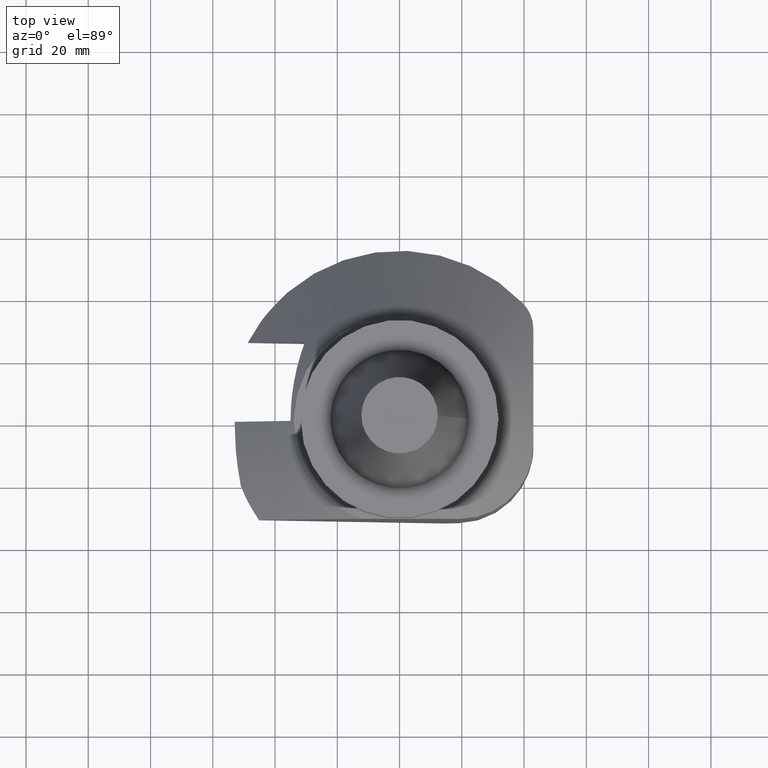
[diagram: clean part render]
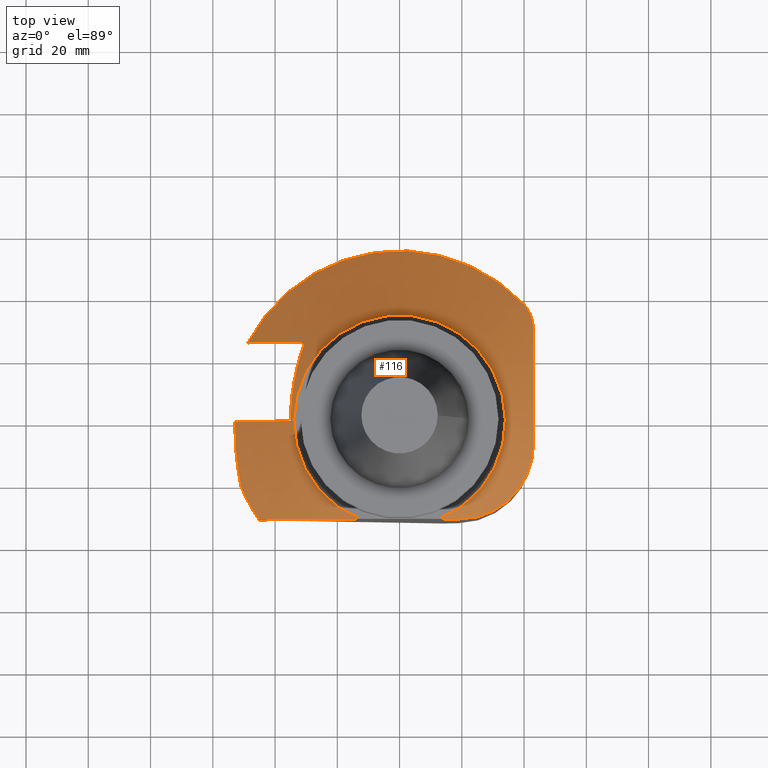
[diagram: same view with one face highlighted and labeled with its STEP entity id]
A machine part, top view. The second image highlights one B-rep face of the part: STEP entity #116.
In plain terms, the highlighted conical surface has half-angle 45 deg.
Its self-contained STEP definition (entity closure, byte-faithful):
#116=ADVANCED_FACE('Unnamed[1]',(#336),#337,.T.);
#124=EDGE_CURVE('Unnamed[1]',#351,#352,#353,.T.);
#130=EDGE_CURVE('Unnamed[1]',#362,#363,#364,.T.);
#156=EDGE_CURVE('Unnamed[1]',#402,#403,#404,.T.);
#162=EDGE_CURVE('Unnamed[1]',#412,#413,#414,.T.);
#179=EDGE_CURVE('Unnamed[1]',#351,#436,#437,.T.);
#181=EDGE_CURVE('Unnamed[1]',#403,#363,#439,.T.);
#189=EDGE_CURVE('Unnamed[1]',#344,#352,#450,.T.);
#205=EDGE_CURVE('Unnamed[1]',#433,#344,#471,.T.);
#219=EDGE_CURVE('Unnamed[1]',#362,#444,#490,.T.);
#248=EDGE_CURVE('Unnamed[1]',#436,#402,#527,.T.);
#253=EDGE_CURVE('Unnamed[1]',#413,#433,#533,.T.);
#257=EDGE_CURVE('Unnamed[1]',#444,#412,#537,.T.);
#336=FACE_OUTER_BOUND('',#629,.T.);
#337=CONICAL_SURFACE('',#630,44.4999999999994,0.785398163397441);
#344=VERTEX_POINT('',#640);
#351=VERTEX_POINT('',#651);
#352=VERTEX_POINT('',#652);
#353=CIRCLE('',#653,55.0000000000001);
#362=VERTEX_POINT('',#666);
#363=VERTEX_POINT('',#667);
#364=CIRCLE('',#668,55.0000000000001);
#402=VERTEX_POINT('',#716);
#403=VERTEX_POINT('',#717);
#404=LINE('',#718,#719);
#412=VERTEX_POINT('',#732);
#413=VERTEX_POINT('',#733);
#414=(B_SPLINE_CURVE(2,(#735,#736,#737),.UNSPECIFIED.,.F.,.F.)B_SPLINE_CURVE_WITH_KNOTS((3,3),(0.0,38.6326090331154),.UNSPECIFIED.)RATIONAL_B_SPLINE_CURVE((1.0,1.07311621530074,1.0))BOUNDED_CURVE()REPRESENTATION_ITEM('')GEOMETRIC_REPRESENTATION_ITEM()CURVE());
#433=VERTEX_POINT('',#769);
#436=VERTEX_POINT('',#774);
#437=(B_SPLINE_CURVE(2,(#776,#777,#778),.UNSPECIFIED.,.F.,.F.)B_SPLINE_CURVE_WITH_KNOTS((3,3),(0.0,33.5817904275308),.UNSPECIFIED.)RATIONAL_B_SPLINE_CURVE((1.0,1.04629863878547,1.0))BOUNDED_CURVE()REPRESENTATION_ITEM('')GEOMETRIC_REPRESENTATION_ITEM()CURVE());
#439=B_SPLINE_CURVE_WITH_KNOTS('',2,(#787,#788,#789,#790,#791),.UNSPECIFIED.,.F.,.F.,(3,2,3),(0.0,20.8328998074148,41.6657996148295),.UNSPECIFIED.);
#444=VERTEX_POINT('',#798);
#450=B_SPLINE_CURVE_WITH_KNOTS('',3,(#808,#809,#810,#811,#812,#813,#814,#815,#816,#817,#818,#819,#820,#821,#822,#823,#824,#825),.UNSPECIFIED.,.F.,.F.,(4,2,2,2,2,2,2,2,4),(27.7605098795428,29.3034102222533,30.8463105649638,32.3892109076743,33.6780644914804,34.9669180752865,36.2557716590926,37.5446252428987,38.8334788267049),.UNSPECIFIED.);
#471=(B_SPLINE_CURVE(2,(#855,#856,#857),.UNSPECIFIED.,.F.,.F.)B_SPLINE_CURVE_WITH_KNOTS((3,3),(0.0,72.6636084983805),.UNSPECIFIED.)RATIONAL_B_SPLINE_CURVE((1.0,1.27906976744211,1.0))BOUNDED_CURVE()REPRESENTATION_ITEM('')GEOMETRIC_REPRESENTATION_ITEM()CURVE());
#490=(B_SPLINE_CURVE(2,(#890,#891,#892),.UNSPECIFIED.,.F.,.F.)B_SPLINE_CURVE_WITH_KNOTS((3,3),(0.0,38.6326090331154),.UNSPECIFIED.)RATIONAL_B_SPLINE_CURVE((1.0,1.07311621530074,1.0))BOUNDED_CURVE()REPRESENTATION_ITEM('')GEOMETRIC_REPRESENTATION_ITEM()CURVE());
#527=B_SPLINE_CURVE_WITH_KNOTS('',2,(#951,#952,#953),.UNSPECIFIED.,.F.,.F.,(3,3),(0.0,119.908544665202),.UNSPECIFIED.);
#533=B_SPLINE_CURVE_WITH_KNOTS('',3,(#961,#962,#963,#964,#965,#966,#967,#968,#969,#970,#971,#972,#973,#974,#975,#976,#977,#978,#979,#980,#981,#982,#983,#984,#985,#986),.UNSPECIFIED.,.F.,.F.,(4,2,2,2,2,2,2,2,2,2,2,2,4),(7.0755595060852,10.6133392591278,14.1511190121704,17.3437649584469,20.5364109047233,23.7290568509998,26.9217027972763,29.9863579226118,33.0510130479474,36.1156681732829,39.1803232986185,42.3222428172419,45.4641623358653),.UNSPECIFIED.);
#537=CIRCLE('',#993,33.9999999999988);
#629=EDGE_LOOP('',(#1099,#1100,#1101,#1102,#1103,#1104,#1105,#1106,#1107,#1108,#1109,#1110));
#630=AXIS2_PLACEMENT_3D('',#1111,#1112,#1113);
#640=CARTESIAN_POINT('',(43.0000000000008,29.7993288515026,-53.3163454381138));
#651=CARTESIAN_POINT('',(-48.7836038029173,25.4,-56.0));
#652=CARTESIAN_POINT('',(39.6511627906985,38.1154206240149,-56.0000000000004));
#653=AXIS2_PLACEMENT_3D('',#1117,#1118,#1119);
#666=CARTESIAN_POINT('',(-45.0860288781339,-31.5000000000002,-55.9999999999993));
#667=CARTESIAN_POINT('',(-50.9999999999992,-20.5912602819761,-56.0));
#668=AXIS2_PLACEMENT_3D('',#1124,#1125,#1126);
#716=CARTESIAN_POINT('',(-35.0394877578616,2.88745666838479E-014,-36.0394877578613));
#717=CARTESIAN_POINT('',(-52.9999999999995,6.42860250629186E-014,-53.9999999999994));
#718=CARTESIAN_POINT('',(-44.4999999999994,1.97470934346012E-014,-45.4999999999992));
#719=VECTOR('',#1183,1.0);
#732=CARTESIAN_POINT('',(12.796483892066,-31.5000000000002,-34.9999999999984));
#733=CARTESIAN_POINT('',(19.0000000000007,-31.5,-37.7865464538328));
#735=CARTESIAN_POINT('',(12.796483892066,-31.5000000000002,-34.9999999999984));
#736=CARTESIAN_POINT('',(25.1318156845002,-31.5000000000002,-39.6426139583861));
#737=CARTESIAN_POINT('',(45.0860288781487,-31.5000000000003,-56.0000000000115));
#769=CARTESIAN_POINT('',(43.0000000000007,-7.50000000000009,-44.6491695224553));
#774=CARTESIAN_POINT('',(-30.4363953520996,25.4000000000001,-40.6425801636232));
#776=CARTESIAN_POINT('',(-48.783840437169,25.4,-56.0002098886828));
#777=CARTESIAN_POINT('',(-32.603885582621,25.4000000000001,-41.6489858205854));
#778=CARTESIAN_POINT('',(-22.6017698421922,25.4000000000001,-34.9999999999913));
#787=CARTESIAN_POINT('',(-50.9997901113164,20.5923407217548,-56.0002098886828));
#788=CARTESIAN_POINT('',(-52.9999999999996,10.2961703608775,-53.9999999999996));
#789=CARTESIAN_POINT('',(-52.9999999999997,1.15463194561016E-014,-53.9999999999996));
#790=CARTESIAN_POINT('',(-52.9999999999997,-10.2961703608774,-53.9999999999996));
#791=CARTESIAN_POINT('',(-50.9997901113164,-20.5923407217548,-56.0002098886828));
#798=CARTESIAN_POINT('',(-12.796483892066,-31.5000000000002,-34.9999999999984));
#808=CARTESIAN_POINT('',(42.9857557853325,29.2148134501773,-52.9738446275043));
#809=CARTESIAN_POINT('',(43.0086331019977,29.6839232987416,-53.2564551514206));
#810=CARTESIAN_POINT('',(43.0044193920009,30.171432085167,-53.5311065562401));
#811=CARTESIAN_POINT('',(42.9330994531678,31.1578877851202,-54.0460814201967));
#812=CARTESIAN_POINT('',(42.865901481108,31.6571703282046,-54.2865629527265));
#813=CARTESIAN_POINT('',(42.6696571086593,32.6401554698778,-54.7203428433219));
#814=CARTESIAN_POINT('',(42.54055220188,33.1238529322254,-54.9136263698599));
#815=CARTESIAN_POINT('',(42.2587486622815,33.9713573270026,-55.21908374886));
#816=CARTESIAN_POINT('',(42.103402104987,34.3720408572199,-55.3502697574906));
#817=CARTESIAN_POINT('',(41.7370472659778,35.1762284600335,-55.5817398436669));
#818=CARTESIAN_POINT('',(41.5259916391165,35.5797173286451,-55.6820018060097));
#819=CARTESIAN_POINT('',(41.0552206566601,36.3645347479104,-55.8425709212611));
#820=CARTESIAN_POINT('',(40.7952706044606,36.7461972633082,-55.9029357961453));
#821=CARTESIAN_POINT('',(40.2421062007657,37.4667782265759,-55.9816498859721));
#822=CARTESIAN_POINT('',(39.9488912541502,37.8056961193793,-56.0000000000004));
#823=CARTESIAN_POINT('',(39.3534343272467,38.4251451286505,-56.0000000000004));
#824=CARTESIAN_POINT('',(39.0263570396004,38.731512213839,-55.9816498859725));
#825=CARTESIAN_POINT('',(38.677267152629,39.0221033292384,-55.9422928410591));
#855=CARTESIAN_POINT('',(43.0000000000007,-34.2928563989823,-56.0000000000115));
#856=CARTESIAN_POINT('',(43.0000000000007,-1.01389603783403E-013,-34.6181818181755));
#857=CARTESIAN_POINT('',(43.0000000000008,34.2928563989821,-56.0000000000116));
#890=CARTESIAN_POINT('',(-45.0860288781488,-31.5000000000002,-56.0000000000116));
#891=CARTESIAN_POINT('',(-25.1318156845002,-31.5000000000002,-39.6426139583861));
#892=CARTESIAN_POINT('',(-12.796483892066,-31.5000000000002,-34.9999999999984));
#951=CARTESIAN_POINT('',(-15.0787656270401,52.8928531558278,-56.0002098886828));
#952=CARTESIAN_POINT('',(-55.0002098886834,-3.88365624857746E-014,-16.0787656270395));
#953=CARTESIAN_POINT('',(-15.07876562704,-52.8928531558279,-56.0002098886828));
#961=CARTESIAN_POINT('',(18.8237335880874,-31.4993527027716,-37.6952608232804));
#962=CARTESIAN_POINT('',(19.9573823335325,-31.5076786451015,-38.2839408774414));
#963=CARTESIAN_POINT('',(21.1037809390737,-31.4345922910759,-38.8482599998965));
#964=CARTESIAN_POINT('',(23.3552101515658,-31.1288541157086,-39.9032006708335));
#965=CARTESIAN_POINT('',(24.4602018527806,-30.8961199529368,-40.3938813843904));
#966=CARTESIAN_POINT('',(26.4595620086925,-30.3325621458993,-41.2413143827097));
#967=CARTESIAN_POINT('',(27.4411962114438,-29.991827438261,-41.6390876792474));
#968=CARTESIAN_POINT('',(29.4018249951322,-29.1549793750135,-42.3942824581303));
#969=CARTESIAN_POINT('',(30.3807717755471,-28.6587839759329,-42.751737122154));
#970=CARTESIAN_POINT('',(32.2731604417765,-27.5259659471113,-43.4043164105877));
#971=CARTESIAN_POINT('',(33.1873765536998,-26.8887955319533,-43.6997541852665));
#972=CARTESIAN_POINT('',(34.8994628005112,-25.5114998903288,-44.2165344542345));
#973=CARTESIAN_POINT('',(35.6972983792402,-24.7713398425838,-44.4378986273903));
#974=CARTESIAN_POINT('',(37.1107309192397,-23.2801784665291,-44.7971621564323));
#975=CARTESIAN_POINT('',(37.7887442875914,-22.4713438100469,-44.9523367632946));
#976=CARTESIAN_POINT('',(39.0532403375717,-20.7297240842493,-45.201068550048));
#977=CARTESIAN_POINT('',(39.6396859063197,-19.7969142007381,-45.2946406522146));
#978=CARTESIAN_POINT('',(40.6782934786398,-17.8567526277084,-45.4114833647177));
#979=CARTESIAN_POINT('',(41.1309507025375,-16.8484441797189,-45.4348163328819));
#980=CARTESIAN_POINT('',(41.8828465639114,-14.817630812767,-45.4135423577638));
#981=CARTESIAN_POINT('',(42.1820996695175,-13.7951313129176,-45.3689294630081));
#982=CARTESIAN_POINT('',(42.6379543051932,-11.7823544868817,-45.2236699984528));
#983=CARTESIAN_POINT('',(42.8099886090233,-10.7086321721824,-45.1155313618013));
#984=CARTESIAN_POINT('',(43.0037050726692,-8.51637629093507,-44.8253065560797));
#985=CARTESIAN_POINT('',(43.0254126314865,-7.39784607446883,-44.6432120353788));
#986=CARTESIAN_POINT('',(42.9694685823317,-6.28980337108137,-44.4273745084141));
#993=AXIS2_PLACEMENT_3D('',#1314,#1315,#1316);
#1099=ORIENTED_EDGE('',*,*,#179,.T.);
#1100=ORIENTED_EDGE('',*,*,#248,.T.);
#1101=ORIENTED_EDGE('',*,*,#156,.T.);
#1102=ORIENTED_EDGE('',*,*,#181,.T.);
#1103=ORIENTED_EDGE('',*,*,#130,.F.);
#1104=ORIENTED_EDGE('',*,*,#219,.T.);
#1105=ORIENTED_EDGE('',*,*,#257,.T.);
#1106=ORIENTED_EDGE('',*,*,#162,.T.);
#1107=ORIENTED_EDGE('',*,*,#253,.T.);
#1108=ORIENTED_EDGE('',*,*,#205,.T.);
#1109=ORIENTED_EDGE('',*,*,#189,.T.);
#1110=ORIENTED_EDGE('',*,*,#124,.F.);
#1111=CARTESIAN_POINT('',(5.57214293612035E-015,-1.01030295240887E-014,-45.4999999999992));
#1112=DIRECTION('',(1.22464679914737E-016,-2.22044604925031E-016,-1.0));
#1113=DIRECTION('',(1.0,-4.44089209850063E-016,1.22464679914737E-016));
#1117=CARTESIAN_POINT('',(6.85802207522517E-015,-1.24344978758018E-014,-56.0));
#1118=DIRECTION('',(1.22464679914742E-016,-2.22044604925031E-016,-1.0));
#1119=DIRECTION('',(1.0,-4.44089209850063E-016,1.22464679914742E-016));
#1124=CARTESIAN_POINT('',(6.85802207522517E-015,-1.24344978758018E-014,-56.0));
#1125=DIRECTION('',(1.22464679914742E-016,-2.22044604925031E-016,-1.0));
#1126=DIRECTION('',(1.0,-4.44089209850063E-016,1.22464679914742E-016));
#1183=DIRECTION('',(-0.707106781186542,-6.82214457785287E-016,-0.707106781186553));
#1314=CARTESIAN_POINT('',(4.28626379701554E-015,-7.77156117237574E-015,-34.9999999999984));
#1315=DIRECTION('',(1.22464679914729E-016,-2.22044604925031E-016,-1.0));
#1316=DIRECTION('',(1.0,-4.44089209850063E-016,1.22464679914729E-016));